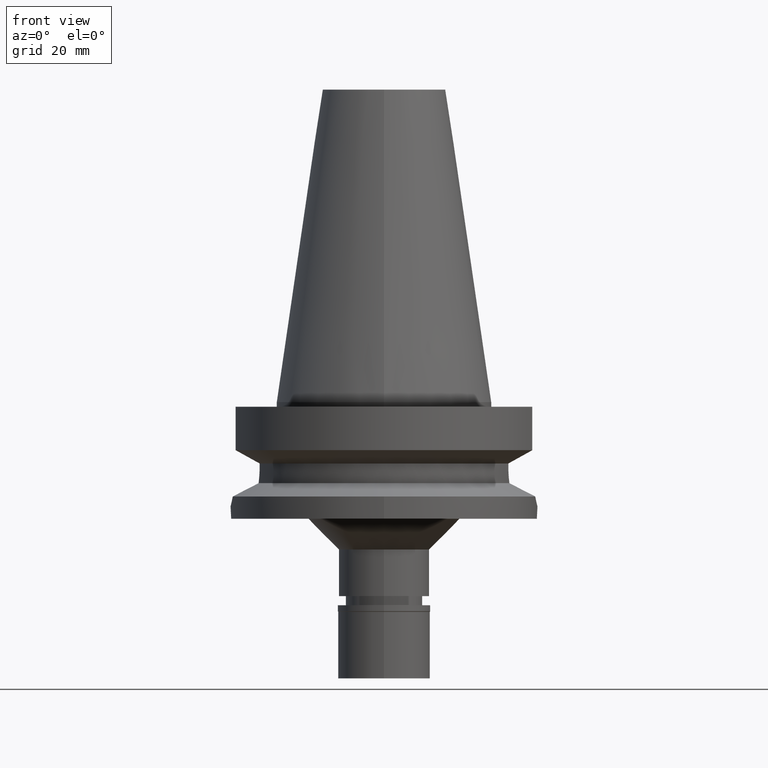
[diagram: clean part render]
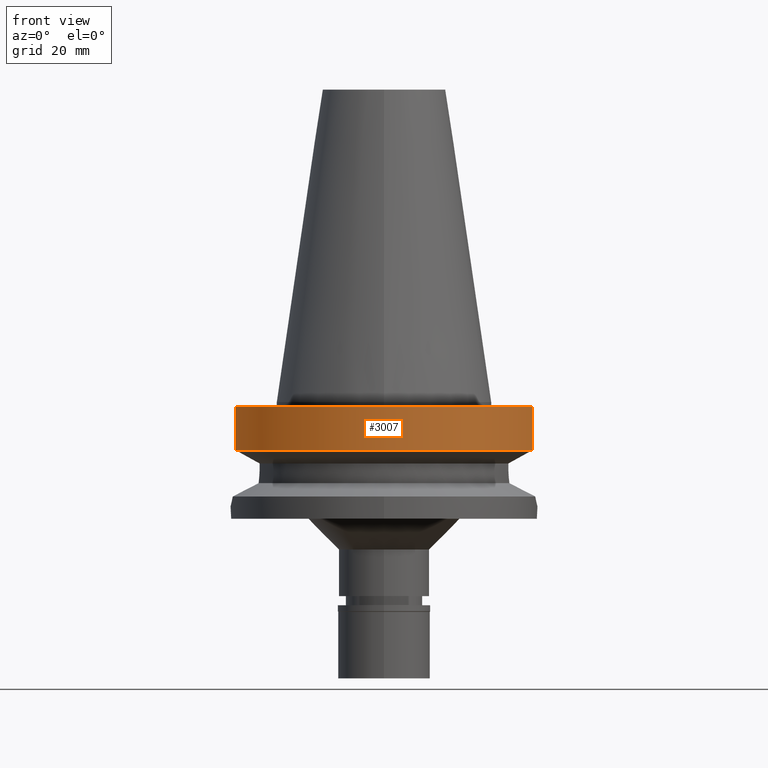
[diagram: same view with one face highlighted and labeled with its STEP entity id]
A machine part, front view. The second image highlights one B-rep face of the part: STEP entity #3007.
In plain terms, the highlighted cylindrical surface (partial cylindrical patch) has radius 50 mm, axis along (0, 0, -1).
Its self-contained STEP definition (entity closure, byte-faithful):
#13 = DIRECTION ( 'NONE',  ( 0.0000000000000000000, -1.000000000000000000, 0.0000000000000000000 ) ) ;
#359 = VERTEX_POINT ( 'NONE', #2755 ) ;
#502 = CARTESIAN_POINT ( 'NONE',  ( 0.0000000000000000000, 1.006319759053999930E-14, -15.66269223573000069 ) ) ;
#600 = VECTOR ( 'NONE', #1754, 1000.000000000000114 ) ;
#729 = FACE_OUTER_BOUND ( 'NONE', #1312, .T. ) ;
#743 = CIRCLE ( 'NONE', #1090, 50.00000000000000000 ) ;
#769 = ORIENTED_EDGE ( 'NONE', *, *, #778, .T. ) ;
#778 = EDGE_CURVE ( 'NONE', #2414, #1142, #2730, .T. ) ;
#788 = CARTESIAN_POINT ( 'NONE',  ( 48.32057015392000210, -12.84999999999999964, -1.500000000000000000 ) ) ;
#848 = AXIS2_PLACEMENT_3D ( 'NONE', #2440, #2210, #13 ) ;
#998 = DIRECTION ( 'NONE',  ( 0.0000000000000000000, 0.0000000000000000000, 1.000000000000000000 ) ) ;
#1046 = CARTESIAN_POINT ( 'NONE',  ( -48.32056913465999770, -12.85000383278999969, -15.66265790196000296 ) ) ;
#1090 = AXIS2_PLACEMENT_3D ( 'NONE', #502, #998, #1956 ) ;
#1142 = VERTEX_POINT ( 'NONE', #1487 ) ;
#1264 = VECTOR ( 'NONE', #1276, 1000.000000000000000 ) ;
#1276 = DIRECTION ( 'NONE',  ( -7.196831407954718065E-08, 2.706262816044894479E-07, 0.9999999999999608091 ) ) ;
#1312 = EDGE_LOOP ( 'NONE', ( #2647, #1975, #2191, #769 ) ) ;
#1487 = CARTESIAN_POINT ( 'NONE',  ( -48.32057015392000210, -12.84999999999999964, -1.500000000000000000 ) ) ;
#1643 = EDGE_CURVE ( 'NONE', #2296, #1142, #2278, .T. ) ;
#1694 = CYLINDRICAL_SURFACE ( 'NONE', #3060, 50.00000000000000000 ) ;
#1754 = DIRECTION ( 'NONE',  ( -7.186874966168719216E-08, -2.702518851671894641E-07, -0.9999999999999609201 ) ) ;
#1787 = LINE ( 'NONE', #788, #600 ) ;
#1956 = DIRECTION ( 'NONE',  ( 0.0000000000000000000, -1.000000000000000000, 0.0000000000000000000 ) ) ;
#1975 = ORIENTED_EDGE ( 'NONE', *, *, #2987, .T. ) ;
#1992 = CARTESIAN_POINT ( 'NONE',  ( -48.32056913465999770, -12.85000383278999969, -15.66265790196000296 ) ) ;
#2191 = ORIENTED_EDGE ( 'NONE', *, *, #2314, .F. ) ;
#2198 = DIRECTION ( 'NONE',  ( 0.0000000000000000000, -1.000000000000000000, 0.0000000000000000000 ) ) ;
#2210 = DIRECTION ( 'NONE',  ( 0.0000000000000000000, 0.0000000000000000000, -1.000000000000000000 ) ) ;
#2278 = LINE ( 'NONE', #1046, #1264 ) ;
#2296 = VERTEX_POINT ( 'NONE', #1992 ) ;
#2314 = EDGE_CURVE ( 'NONE', #2414, #359, #1787, .T. ) ;
#2414 = VERTEX_POINT ( 'NONE', #2575 ) ;
#2428 = DIRECTION ( 'NONE',  ( 0.0000000000000000000, 0.0000000000000000000, -1.000000000000000000 ) ) ;
#2440 = CARTESIAN_POINT ( 'NONE',  ( 0.0000000000000000000, 2.582657634721999574E-14, -1.500000000000000000 ) ) ;
#2575 = CARTESIAN_POINT ( 'NONE',  ( 48.32057015392000210, -12.84999999999999964, -1.500000000000000000 ) ) ;
#2647 = ORIENTED_EDGE ( 'NONE', *, *, #1643, .F. ) ;
#2671 = CARTESIAN_POINT ( 'NONE',  ( 0.0000000000000000000, 2.582657634721999574E-14, 110.8900000000000006 ) ) ;
#2730 = CIRCLE ( 'NONE', #848, 50.00000000000000000 ) ;
#2755 = CARTESIAN_POINT ( 'NONE',  ( 48.32057015392000210, -12.84999999999999964, -15.66269223573000069 ) ) ;
#2987 = EDGE_CURVE ( 'NONE', #2296, #359, #743, .T. ) ;
#3007 = ADVANCED_FACE ( 'NONE', ( #729 ), #1694, .T. ) ;
#3060 = AXIS2_PLACEMENT_3D ( 'NONE', #2671, #2428, #2198 ) ;